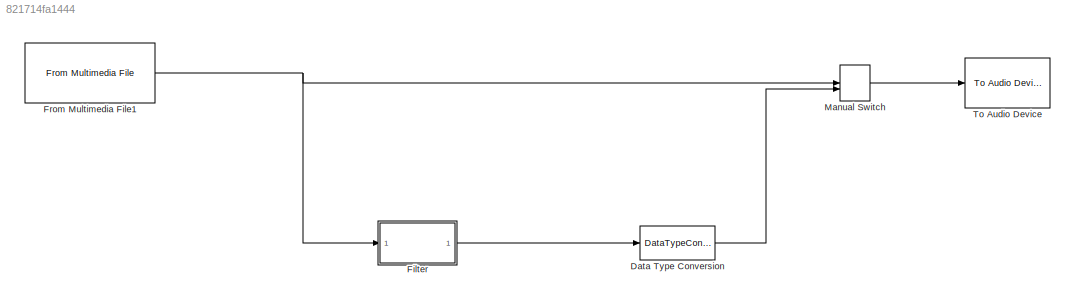
MODEL slx_821714fa1444
KIND model
CONFIG AbsTol = auto
CONFIG EnableMultiTasking = on
CONFIG FixedStep = auto
CONFIG MaxStep = auto
CONFIG MinStep = auto
CONFIG RelTol = 1e-3
CONFIG SampleTimeConstraint = Unconstrained
CONFIG Solver = ode45
CONFIG SolverName = ode45
CONFIG StartTime = 0.0
CONFIG StopTime = 10.0
BLOCK [DataTypeConversion] Data Type Conversion
  RndMeth = Floor
  SaturateOnIntegerOverflow = off
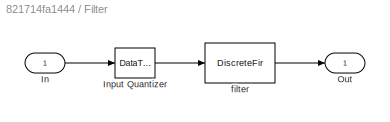
BLOCK [SubSystem] Filter
  Ports = [1, 1]
  RequestExecContextInheritance = off
  Tag = BlockMethodSubSystem
  Variant = off
BLOCK [Inport] Filter/In
  IconDisplay = Port number
BLOCK [DataTypeConversion] Filter/Input Quantizer
  OutDataTypeStr = fixdt(1,16,15)
  RndMeth = Round
BLOCK [Outport] Filter/Out
  IconDisplay = Port number
BLOCK [DiscreteFir] Filter/filter
  AccumDataTypeStr = fixdt(true,34,31)
  CoefDataTypeStr = fixdt(true,16,16)
  Coefficients = [0.0036840626645888849 0.0029312178951941743 -0.0016555557872138787 -0.0094658006262221487 -0.014728988749761765 -0.012043455818540919 -0.0024153450486515335 0.0061508974886797865 0.0057346838199391972 -0.0029869837480845968 -0.010248646060759582 -0.0069100677011288292 0.0049600833394223623 0.012760498811448804 0.0064944265875801366 -0.0088578127181410844 -0.016509451051346109 -0.00569174443258110...<+1001ch>
  InputPortMap = u0
  InputProcessing = Columns as channels (frame based)
  OutDataTypeStr = fixdt(true,34,31)
  OutputPortMap = o0
  Ports = [1, 1]
  ProductDataTypeStr = fixdt(true,31,31)
  RndMeth = Convergent
BLOCK [Reference] From Multimedia File1  REF=dspvision/From Multimedia File
  Ports = [0, 1]
  SourceBlock = dspvision/From Multimedia File
  SourceProductBaseCode = VP
  SourceProductName = Computer Vision System Toolbox
  SourceType = From Multimedia File
BLOCK [ManualSwitch] Manual Switch
BLOCK [Reference] To Audio Device  REF=dspobslib/To Audio
Device
  Ports = [1]
  SourceBlock = dspobslib/To Audio\nDevice
  SourceProductBaseCode = DS
  SourceProductName = DSP System Toolbox
  SourceType = To Audio Device
LINE Data Type Conversion:1 -> Manual Switch:2
LINE Filter/In:1 -> Filter/Input Quantizer:1
LINE Filter/Input Quantizer:1 -> Filter/filter:1
LINE Filter/filter:1 -> Filter/Out:1
LINE Filter:1 -> Data Type Conversion:1
NET From Multimedia File1:1 -> Filter:1, Manual Switch:1
LINE Manual Switch:1 -> To Audio Device:1
note: NET lines group one-source signal fan-out (src -> all destinations, sorted); 1:1 wires keep LINE
